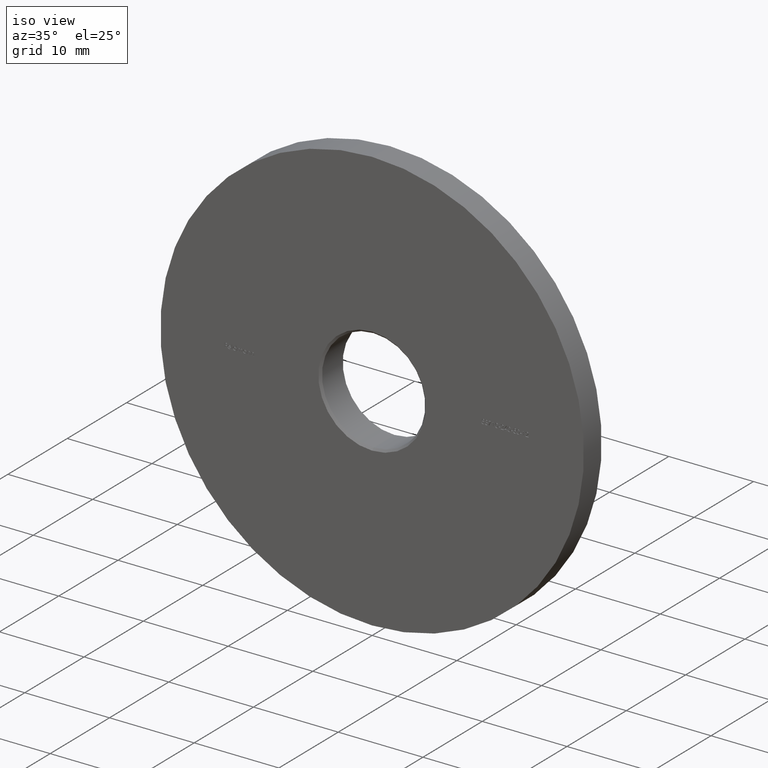
[diagram: clean part render]
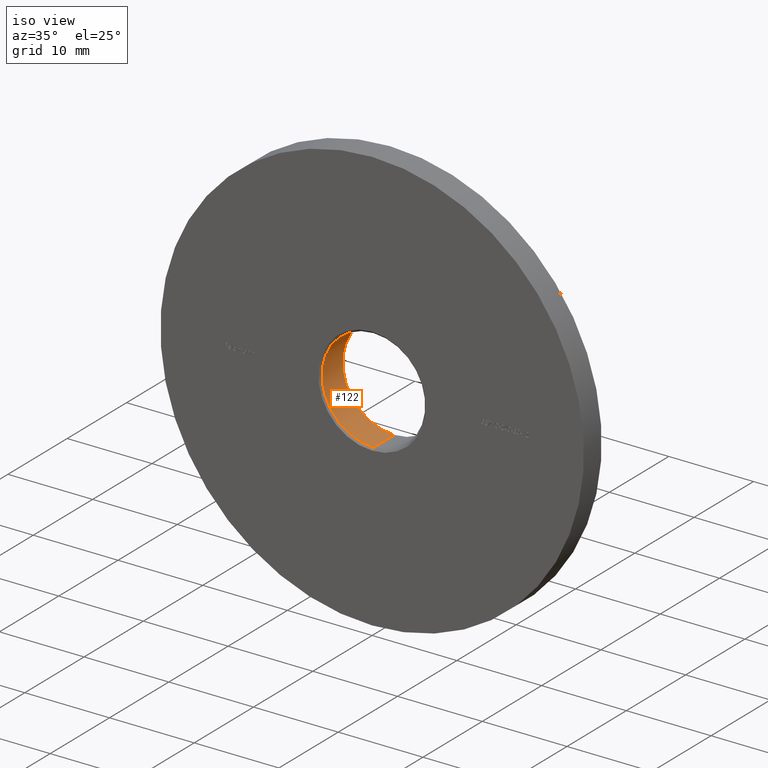
[diagram: same view with one face highlighted and labeled with its STEP entity id]
A machine part, iso view. The second image highlights one B-rep face of the part: STEP entity #122.
In plain terms, the highlighted cylindrical surface (partial cylindrical patch) has radius 6.1 mm, axis along (-0, -1, -0).
Its self-contained STEP definition (entity closure, byte-faithful):
#122 = ADVANCED_FACE ( 'NONE', ( #15238 ), #13321, .F. ) ;
#498 = VERTEX_POINT ( 'NONE', #12740 ) ;
#1106 = CIRCLE ( 'NONE', #7866, 6.099999999999999645 ) ;
#1206 = VERTEX_POINT ( 'NONE', #7665 ) ;
#1537 = VECTOR ( 'NONE', #5597, 1000.000000000000000 ) ;
#1818 = DIRECTION ( 'NONE',  ( -0.000000000000000000, -1.000000000000000000, -0.000000000000000000 ) ) ;
#2017 = CARTESIAN_POINT ( 'NONE',  ( 0.000000000000000000, 0.2499999999999950040, -6.099999999999999645 ) ) ;
#3101 = ORIENTED_EDGE ( 'NONE', *, *, #9361, .T. ) ;
#3653 = EDGE_CURVE ( 'NONE', #1206, #12766, #10284, .T. ) ;
#3813 = DIRECTION ( 'NONE',  ( -0.000000000000000000, -1.000000000000000000, -0.000000000000000000 ) ) ;
#3828 = AXIS2_PLACEMENT_3D ( 'NONE', #12005, #11904, #8447 ) ;
#5004 = VERTEX_POINT ( 'NONE', #2017 ) ;
#5242 = ORIENTED_EDGE ( 'NONE', *, *, #7439, .F. ) ;
#5336 = DIRECTION ( 'NONE',  ( 0.000000000000000000, 1.000000000000000000, 0.000000000000000000 ) ) ;
#5597 = DIRECTION ( 'NONE',  ( -0.000000000000000000, -1.000000000000000000, -0.000000000000000000 ) ) ;
#6368 = ORIENTED_EDGE ( 'NONE', *, *, #3653, .T. ) ;
#6544 = DIRECTION ( 'NONE',  ( 0.000000000000000000, 0.000000000000000000, 1.000000000000000000 ) ) ;
#7439 = EDGE_CURVE ( 'NONE', #498, #5004, #14075, .T. ) ;
#7665 = CARTESIAN_POINT ( 'NONE',  ( 7.470345474798854293E-16, 3.749999999999984457, 6.099999999999999645 ) ) ;
#7682 = CIRCLE ( 'NONE', #3828, 6.099999999999999645 ) ;
#7866 = AXIS2_PLACEMENT_3D ( 'NONE', #13696, #5336, #6544 ) ;
#8447 = DIRECTION ( 'NONE',  ( 0.000000000000000000, 0.000000000000000000, 1.000000000000000000 ) ) ;
#8593 = VECTOR ( 'NONE', #1818, 1000.000000000000000 ) ;
#9361 = EDGE_CURVE ( 'NONE', #12766, #5004, #7682, .T. ) ;
#9808 = CARTESIAN_POINT ( 'NONE',  ( 0.000000000000000000, 4.000000000000000000, 0.000000000000000000 ) ) ;
#10284 = LINE ( 'NONE', #13421, #8593 ) ;
#10463 = CARTESIAN_POINT ( 'NONE',  ( 0.000000000000000000, 4.000000000000000000, -6.099999999999999645 ) ) ;
#11713 = CARTESIAN_POINT ( 'NONE',  ( 7.470345474798854293E-16, 0.2499999999999950040, 6.099999999999999645 ) ) ;
#11904 = DIRECTION ( 'NONE',  ( -0.000000000000000000, -1.000000000000000000, -0.000000000000000000 ) ) ;
#12005 = CARTESIAN_POINT ( 'NONE',  ( 0.000000000000000000, 0.2499999999999950040, 0.000000000000000000 ) ) ;
#12740 = CARTESIAN_POINT ( 'NONE',  ( 0.000000000000000000, 3.749999999999984457, -6.099999999999999645 ) ) ;
#12766 = VERTEX_POINT ( 'NONE', #11713 ) ;
#13193 = EDGE_LOOP ( 'NONE', ( #13768, #6368, #3101, #5242 ) ) ;
#13321 = CYLINDRICAL_SURFACE ( 'NONE', #13672, 6.099999999999999645 ) ;
#13421 = CARTESIAN_POINT ( 'NONE',  ( 7.470345474798854293E-16, 4.000000000000000000, 6.099999999999999645 ) ) ;
#13672 = AXIS2_PLACEMENT_3D ( 'NONE', #9808, #3813, #14511 ) ;
#13696 = CARTESIAN_POINT ( 'NONE',  ( 0.000000000000000000, 3.749999999999984457, 0.000000000000000000 ) ) ;
#13768 = ORIENTED_EDGE ( 'NONE', *, *, #14192, .T. ) ;
#14075 = LINE ( 'NONE', #10463, #1537 ) ;
#14192 = EDGE_CURVE ( 'NONE', #498, #1206, #1106, .T. ) ;
#14511 = DIRECTION ( 'NONE',  ( 0.000000000000000000, 0.000000000000000000, -1.000000000000000000 ) ) ;
#15238 = FACE_OUTER_BOUND ( 'NONE', #13193, .T. ) ;